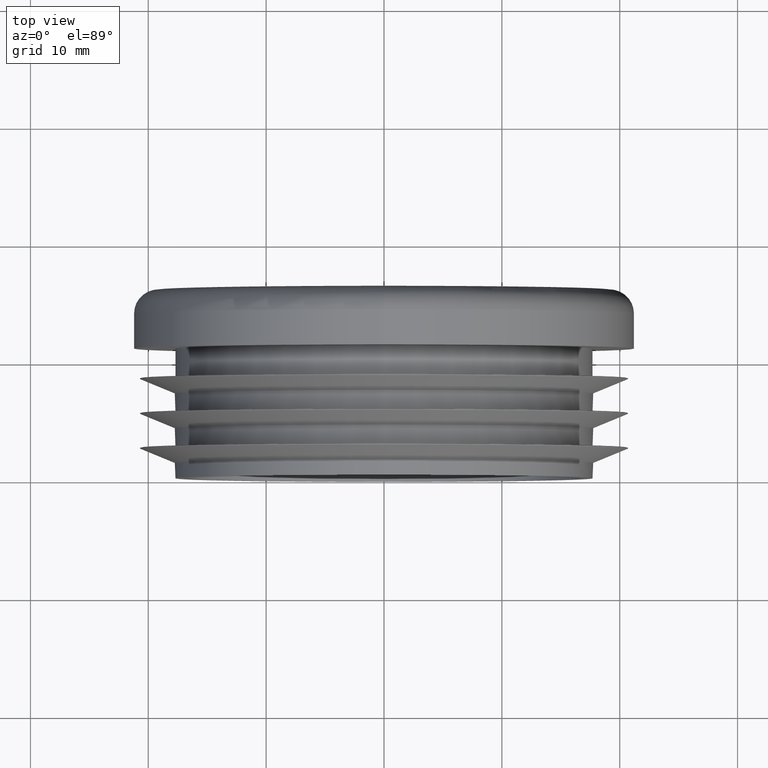
[diagram: clean part render]
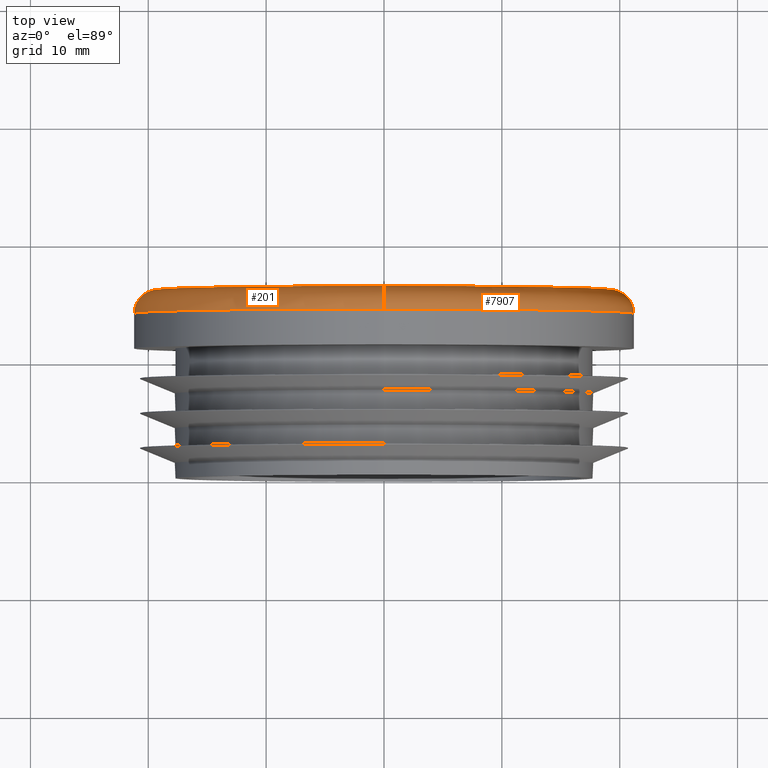
[diagram: same view with one multi-face feature highlighted, each face labeled with its STEP entity id]
A machine part, top view. The highlighted faces form ONE feature: a constant-radius fillet chain: 2 tangent blend faces with common blend radius 2 mm. The faces share edges in the B-rep.
Their STEP definitions:
[1] entity #201 (Torus):
#201 = ADVANCED_FACE ( 'NONE', ( #5689 ), #12379, .T. ) ;
#379 = VERTEX_POINT ( 'NONE', #1791 ) ;
#442 = CARTESIAN_POINT ( 'NONE',  ( 0.000000000000000000, 14.00000000000000000, 0.000000000000000000 ) ) ;
#656 = AXIS2_PLACEMENT_3D ( 'NONE', #2952, #9677, #3921 ) ;
#829 = CIRCLE ( 'NONE', #7030, 21.19999999999999574 ) ;
#1410 = DIRECTION ( 'NONE',  ( 0.000000000000000000, 0.000000000000000000, 1.000000000000000000 ) ) ;
#1559 = EDGE_LOOP ( 'NONE', ( #6397, #5102, #6631, #8678 ) ) ;
#1623 = DIRECTION ( 'NONE',  ( 0.000000000000000000, 0.000000000000000000, 1.000000000000000000 ) ) ;
#1791 = CARTESIAN_POINT ( 'NONE',  ( 0.000000000000000000, 14.00000000000000000, -21.19999999999999574 ) ) ;
#1814 = DIRECTION ( 'NONE',  ( 1.000000000000000000, -0.000000000000000000, 1.224646799147353207E-16 ) ) ;
#2319 = AXIS2_PLACEMENT_3D ( 'NONE', #442, #11018, #7150 ) ;
#2351 = DIRECTION ( 'NONE',  ( -0.000000000000000000, -1.000000000000000000, -0.000000000000000000 ) ) ;
#2475 = CIRCLE ( 'NONE', #8388, 2.000000000000001776 ) ;
#2535 = VERTEX_POINT ( 'NONE', #11418 ) ;
#2746 = CARTESIAN_POINT ( 'NONE',  ( 0.000000000000000000, 14.00000000000000000, 0.000000000000000000 ) ) ;
#2952 = CARTESIAN_POINT ( 'NONE',  ( 0.000000000000000000, 14.00000000000000000, 19.19999999999999574 ) ) ;
#3698 = CIRCLE ( 'NONE', #656, 2.000000000000001776 ) ;
#3799 = EDGE_CURVE ( 'NONE', #2535, #7213, #3698, .T. ) ;
#3921 = DIRECTION ( 'NONE',  ( 0.000000000000000000, 0.000000000000000000, 1.000000000000000000 ) ) ;
#5102 = ORIENTED_EDGE ( 'NONE', *, *, #5998, .F. ) ;
#5689 = FACE_OUTER_BOUND ( 'NONE', #1559, .T. ) ;
#5998 = EDGE_CURVE ( 'NONE', #2535, #379, #829, .T. ) ;
#6234 = EDGE_CURVE ( 'NONE', #11524, #7213, #6680, .T. ) ;
#6260 = CARTESIAN_POINT ( 'NONE',  ( 2.473786534277652833E-15, 16.00000000000000000, -19.19999999999999574 ) ) ;
#6397 = ORIENTED_EDGE ( 'NONE', *, *, #11728, .F. ) ;
#6631 = ORIENTED_EDGE ( 'NONE', *, *, #3799, .T. ) ;
#6680 = CIRCLE ( 'NONE', #8854, 19.19999999999999574 ) ;
#7030 = AXIS2_PLACEMENT_3D ( 'NONE', #2746, #2351, #1623 ) ;
#7150 = DIRECTION ( 'NONE',  ( 0.000000000000000000, 0.000000000000000000, 1.000000000000000000 ) ) ;
#7213 = VERTEX_POINT ( 'NONE', #8013 ) ;
#7566 = CARTESIAN_POINT ( 'NONE',  ( 2.351321854362917684E-15, 14.00000000000000000, -19.19999999999999574 ) ) ;
#8013 = CARTESIAN_POINT ( 'NONE',  ( 0.000000000000000000, 16.00000000000000000, 19.19999999999999574 ) ) ;
#8124 = DIRECTION ( 'NONE',  ( 0.000000000000000000, 1.000000000000000000, 0.000000000000000000 ) ) ;
#8388 = AXIS2_PLACEMENT_3D ( 'NONE', #7566, #1814, #9488 ) ;
#8678 = ORIENTED_EDGE ( 'NONE', *, *, #6234, .F. ) ;
#8854 = AXIS2_PLACEMENT_3D ( 'NONE', #10082, #8124, #1410 ) ;
#9488 = DIRECTION ( 'NONE',  ( 1.224646799147351482E-16, 0.000000000000000000, -1.000000000000000000 ) ) ;
#9677 = DIRECTION ( 'NONE',  ( -1.000000000000000000, 0.000000000000000000, 0.000000000000000000 ) ) ;
#10082 = CARTESIAN_POINT ( 'NONE',  ( 0.000000000000000000, 16.00000000000000000, 0.000000000000000000 ) ) ;
#11018 = DIRECTION ( 'NONE',  ( 0.000000000000000000, 1.000000000000000000, 0.000000000000000000 ) ) ;
#11418 = CARTESIAN_POINT ( 'NONE',  ( 2.596251214192388375E-15, 14.00000000000000000, 21.19999999999999574 ) ) ;
#11524 = VERTEX_POINT ( 'NONE', #6260 ) ;
#11728 = EDGE_CURVE ( 'NONE', #379, #11524, #2475, .T. ) ;
#12379 = TOROIDAL_SURFACE ( 'NONE', #2319, 19.19999999999999574, 2.000000000000000000 ) ;
[2] entity #7907 (Torus):
#149 = CARTESIAN_POINT ( 'NONE',  ( 0.000000000000000000, 14.00000000000000000, 0.000000000000000000 ) ) ;
#379 = VERTEX_POINT ( 'NONE', #1791 ) ;
#655 = DIRECTION ( 'NONE',  ( 0.000000000000000000, 0.000000000000000000, 1.000000000000000000 ) ) ;
#656 = AXIS2_PLACEMENT_3D ( 'NONE', #2952, #9677, #3921 ) ;
#940 = ORIENTED_EDGE ( 'NONE', *, *, #3799, .F. ) ;
#1791 = CARTESIAN_POINT ( 'NONE',  ( 0.000000000000000000, 14.00000000000000000, -21.19999999999999574 ) ) ;
#1814 = DIRECTION ( 'NONE',  ( 1.000000000000000000, -0.000000000000000000, 1.224646799147353207E-16 ) ) ;
#1898 = DIRECTION ( 'NONE',  ( 0.000000000000000000, 0.000000000000000000, 1.000000000000000000 ) ) ;
#1964 = CIRCLE ( 'NONE', #7045, 21.19999999999999574 ) ;
#2475 = CIRCLE ( 'NONE', #8388, 2.000000000000001776 ) ;
#2535 = VERTEX_POINT ( 'NONE', #11418 ) ;
#2952 = CARTESIAN_POINT ( 'NONE',  ( 0.000000000000000000, 14.00000000000000000, 19.19999999999999574 ) ) ;
#3698 = CIRCLE ( 'NONE', #656, 2.000000000000001776 ) ;
#3799 = EDGE_CURVE ( 'NONE', #2535, #7213, #3698, .T. ) ;
#3921 = DIRECTION ( 'NONE',  ( 0.000000000000000000, 0.000000000000000000, 1.000000000000000000 ) ) ;
#5845 = DIRECTION ( 'NONE',  ( 0.000000000000000000, 0.000000000000000000, 1.000000000000000000 ) ) ;
#6052 = ORIENTED_EDGE ( 'NONE', *, *, #10264, .F. ) ;
#6260 = CARTESIAN_POINT ( 'NONE',  ( 2.473786534277652833E-15, 16.00000000000000000, -19.19999999999999574 ) ) ;
#6430 = EDGE_CURVE ( 'NONE', #7213, #11524, #11317, .T. ) ;
#6431 = ORIENTED_EDGE ( 'NONE', *, *, #11728, .T. ) ;
#7045 = AXIS2_PLACEMENT_3D ( 'NONE', #9762, #11533, #5845 ) ;
#7213 = VERTEX_POINT ( 'NONE', #8013 ) ;
#7566 = CARTESIAN_POINT ( 'NONE',  ( 2.351321854362917684E-15, 14.00000000000000000, -19.19999999999999574 ) ) ;
#7907 = ADVANCED_FACE ( 'NONE', ( #9809 ), #12131, .T. ) ;
#8013 = CARTESIAN_POINT ( 'NONE',  ( 0.000000000000000000, 16.00000000000000000, 19.19999999999999574 ) ) ;
#8388 = AXIS2_PLACEMENT_3D ( 'NONE', #7566, #1814, #9488 ) ;
#8638 = DIRECTION ( 'NONE',  ( 0.000000000000000000, 1.000000000000000000, 0.000000000000000000 ) ) ;
#9428 = AXIS2_PLACEMENT_3D ( 'NONE', #149, #8638, #1898 ) ;
#9448 = EDGE_LOOP ( 'NONE', ( #6052, #6431, #11303, #940 ) ) ;
#9488 = DIRECTION ( 'NONE',  ( 1.224646799147351482E-16, 0.000000000000000000, -1.000000000000000000 ) ) ;
#9677 = DIRECTION ( 'NONE',  ( -1.000000000000000000, 0.000000000000000000, 0.000000000000000000 ) ) ;
#9750 = AXIS2_PLACEMENT_3D ( 'NONE', #11080, #12009, #655 ) ;
#9762 = CARTESIAN_POINT ( 'NONE',  ( 0.000000000000000000, 14.00000000000000000, 0.000000000000000000 ) ) ;
#9809 = FACE_OUTER_BOUND ( 'NONE', #9448, .T. ) ;
#10264 = EDGE_CURVE ( 'NONE', #379, #2535, #1964, .T. ) ;
#11080 = CARTESIAN_POINT ( 'NONE',  ( 0.000000000000000000, 16.00000000000000000, 0.000000000000000000 ) ) ;
#11303 = ORIENTED_EDGE ( 'NONE', *, *, #6430, .F. ) ;
#11317 = CIRCLE ( 'NONE', #9750, 19.19999999999999574 ) ;
#11418 = CARTESIAN_POINT ( 'NONE',  ( 2.596251214192388375E-15, 14.00000000000000000, 21.19999999999999574 ) ) ;
#11524 = VERTEX_POINT ( 'NONE', #6260 ) ;
#11533 = DIRECTION ( 'NONE',  ( -0.000000000000000000, -1.000000000000000000, -0.000000000000000000 ) ) ;
#11728 = EDGE_CURVE ( 'NONE', #379, #11524, #2475, .T. ) ;
#12009 = DIRECTION ( 'NONE',  ( 0.000000000000000000, 1.000000000000000000, 0.000000000000000000 ) ) ;
#12131 = TOROIDAL_SURFACE ( 'NONE', #9428, 19.19999999999999574, 2.000000000000000000 ) ;